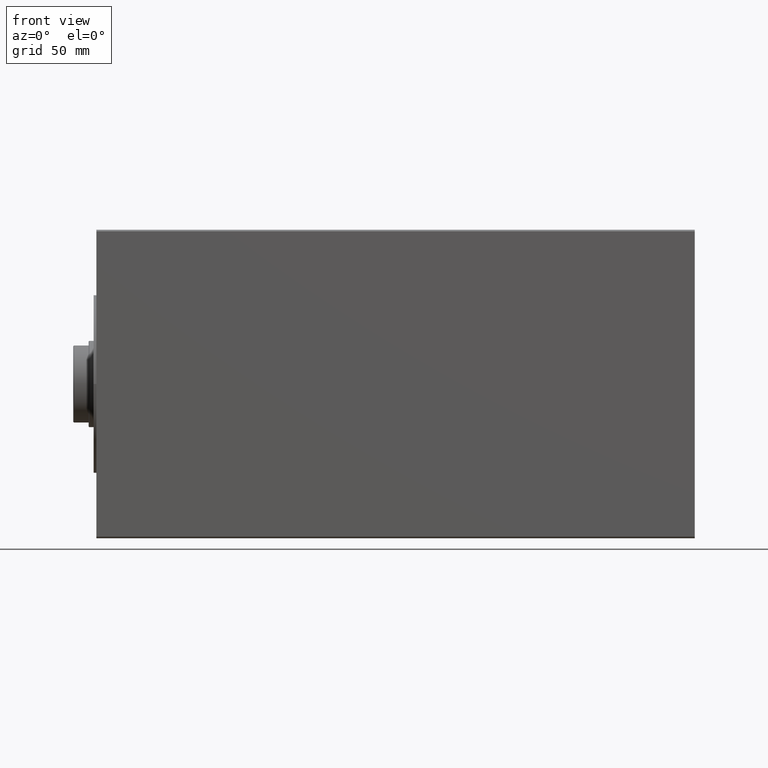
[diagram: clean part render]
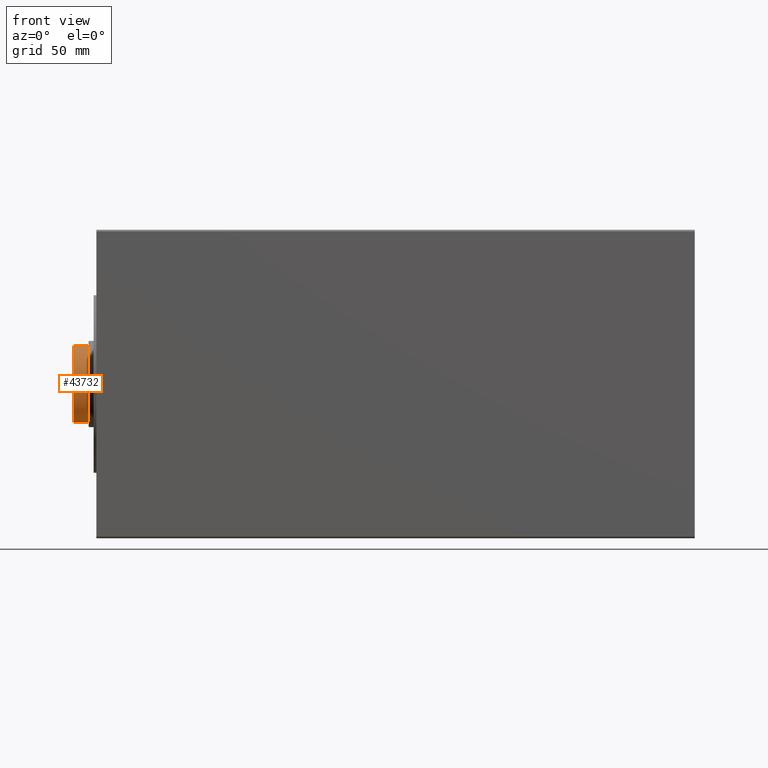
[diagram: same view with one face highlighted and labeled with its STEP entity id]
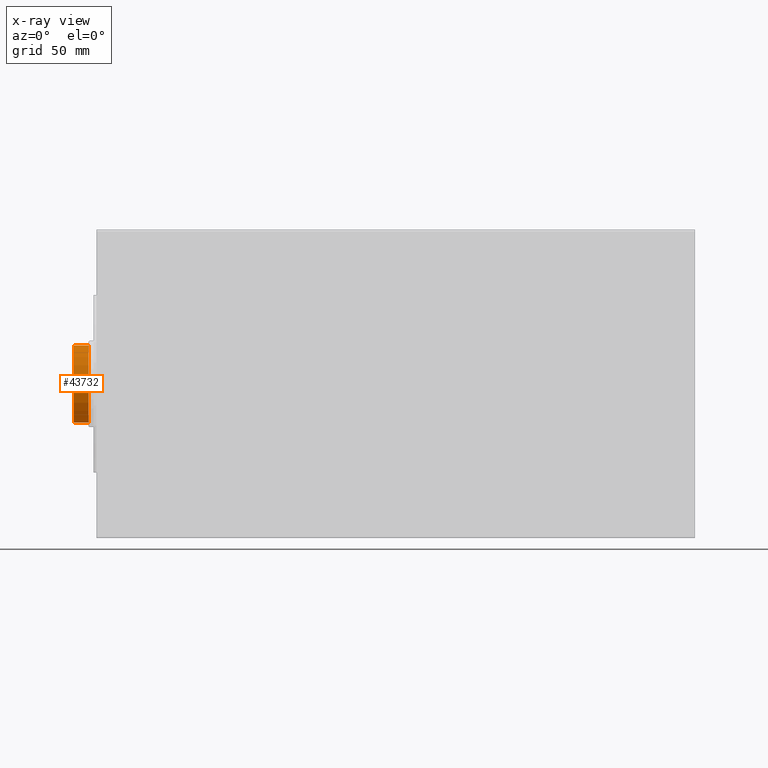
[diagram: x-ray of the same camera — body ghosted, the highlighted face saturated]
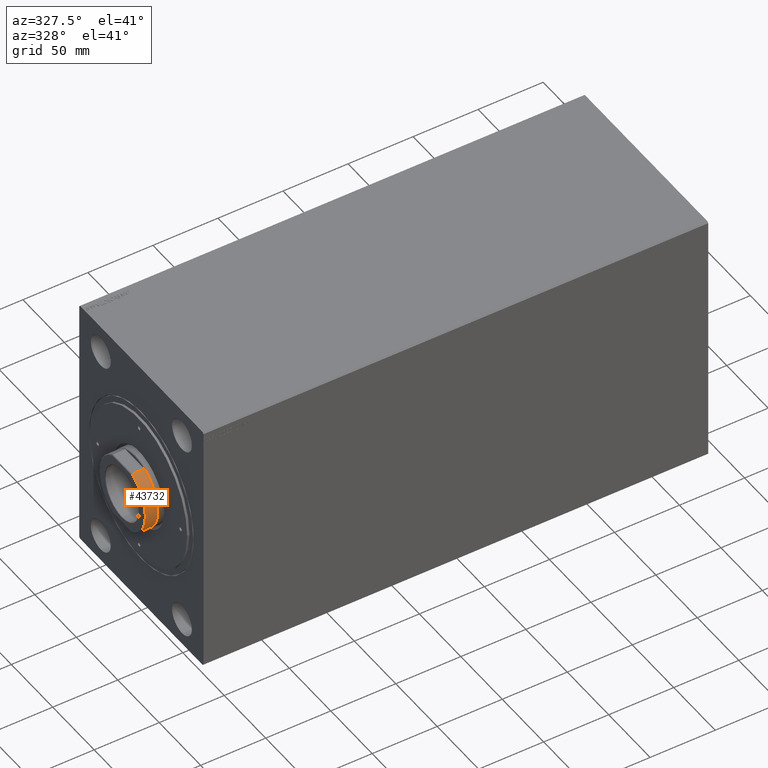
[diagram: same view with one face highlighted and labeled with its STEP entity id]
A machine part, front view. The second image highlights one B-rep face of the part: STEP entity #43732.
The next image is the same camera in x-ray: the body ghosted, the highlighted face saturated — about 0% of this face is hidden behind the body in this view.
A second angle (auxiliary view) of the same face is appended — the face is thin or edge-on in the first view.
In plain terms, the highlighted cylindrical surface (partial cylindrical patch) has radius 27.5 mm, axis along (1, -0, -0).
Its self-contained STEP definition (entity closure, byte-faithful):
#1870 = LINE ( 'NONE', #35486, #17567 ) ;
#2727 = ORIENTED_EDGE ( 'NONE', *, *, #37794, .T. ) ;
#3163 = EDGE_CURVE ( 'NONE', #14343, #9562, #32961, .T. ) ;
#3360 = CIRCLE ( 'NONE', #36038, 27.50000000000002487 ) ;
#3651 = CARTESIAN_POINT ( 'NONE',  ( -25.00000000000000000, -11.45643923738965597, 359.7000000000000455 ) ) ;
#4040 = FACE_OUTER_BOUND ( 'NONE', #4208, .T. ) ;
#4208 = EDGE_LOOP ( 'NONE', ( #16098, #21622, #2727, #29773 ) ) ;
#5271 = DIRECTION ( 'NONE',  ( 1.000000000000000000, 0.000000000000000000, 0.000000000000000000 ) ) ;
#9562 = VERTEX_POINT ( 'NONE', #18182 ) ;
#10942 = DIRECTION ( 'NONE',  ( -1.000000000000000000, 0.000000000000000000, 0.000000000000000000 ) ) ;
#11003 = VERTEX_POINT ( 'NONE', #20138 ) ;
#11595 = CARTESIAN_POINT ( 'NONE',  ( 0.000000000000000000, 0.000000000000000000, 369.2000000000000455 ) ) ;
#14343 = VERTEX_POINT ( 'NONE', #34850 ) ;
#16098 = ORIENTED_EDGE ( 'NONE', *, *, #3163, .F. ) ;
#17567 = VECTOR ( 'NONE', #28592, 1000.000000000000000 ) ;
#17624 = CYLINDRICAL_SURFACE ( 'NONE', #22641, 27.50000000000002487 ) ;
#18182 = CARTESIAN_POINT ( 'NONE',  ( 25.00000000000000000, -11.45643923738965597, 359.7000000000000455 ) ) ;
#18704 = DIRECTION ( 'NONE',  ( 1.000000000000000000, 0.000000000000000000, 0.000000000000000000 ) ) ;
#18943 = CARTESIAN_POINT ( 'NONE',  ( 25.00000000000000000, -11.45643923738965597, 369.7000000000000455 ) ) ;
#19493 = DIRECTION ( 'NONE',  ( 0.000000000000000000, 0.000000000000000000, 1.000000000000000000 ) ) ;
#19586 = EDGE_CURVE ( 'NONE', #41879, #9562, #20114, .T. ) ;
#20114 = CIRCLE ( 'NONE', #37872, 27.50000000000002487 ) ;
#20138 = CARTESIAN_POINT ( 'NONE',  ( -25.00000000000000000, -11.45643923738965597, 369.2000000000000455 ) ) ;
#21622 = ORIENTED_EDGE ( 'NONE', *, *, #43023, .T. ) ;
#22641 = AXIS2_PLACEMENT_3D ( 'NONE', #27850, #31630, #10942 ) ;
#25616 = DIRECTION ( 'NONE',  ( -0.000000000000000000, -0.000000000000000000, -1.000000000000000000 ) ) ;
#26848 = VECTOR ( 'NONE', #25616, 1000.000000000000000 ) ;
#27850 = CARTESIAN_POINT ( 'NONE',  ( 0.000000000000000000, 0.000000000000000000, 369.7000000000000455 ) ) ;
#28592 = DIRECTION ( 'NONE',  ( -0.000000000000000000, -0.000000000000000000, -1.000000000000000000 ) ) ;
#29773 = ORIENTED_EDGE ( 'NONE', *, *, #19586, .T. ) ;
#31630 = DIRECTION ( 'NONE',  ( -0.000000000000000000, -0.000000000000000000, -1.000000000000000000 ) ) ;
#32961 = LINE ( 'NONE', #18943, #26848 ) ;
#34850 = CARTESIAN_POINT ( 'NONE',  ( 25.00000000000000000, -11.45643923738965597, 369.2000000000000455 ) ) ;
#34868 = CARTESIAN_POINT ( 'NONE',  ( 0.000000000000000000, 0.000000000000000000, 359.7000000000000455 ) ) ;
#35486 = CARTESIAN_POINT ( 'NONE',  ( -25.00000000000000000, -11.45643923738965597, 369.7000000000000455 ) ) ;
#36038 = AXIS2_PLACEMENT_3D ( 'NONE', #11595, #42495, #18704 ) ;
#37794 = EDGE_CURVE ( 'NONE', #11003, #41879, #1870, .T. ) ;
#37872 = AXIS2_PLACEMENT_3D ( 'NONE', #34868, #19493, #5271 ) ;
#41879 = VERTEX_POINT ( 'NONE', #3651 ) ;
#42495 = DIRECTION ( 'NONE',  ( 0.000000000000000000, 0.000000000000000000, -1.000000000000000000 ) ) ;
#43023 = EDGE_CURVE ( 'NONE', #14343, #11003, #3360, .T. ) ;
#43732 = ADVANCED_FACE ( 'NONE', ( #4040 ), #17624, .T. ) ;